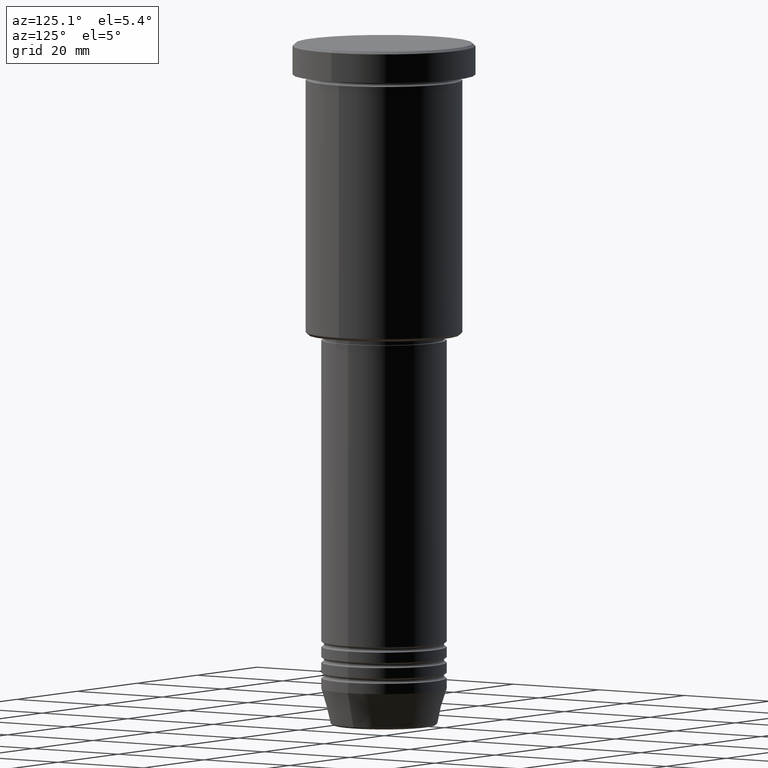
[diagram: clean part render]
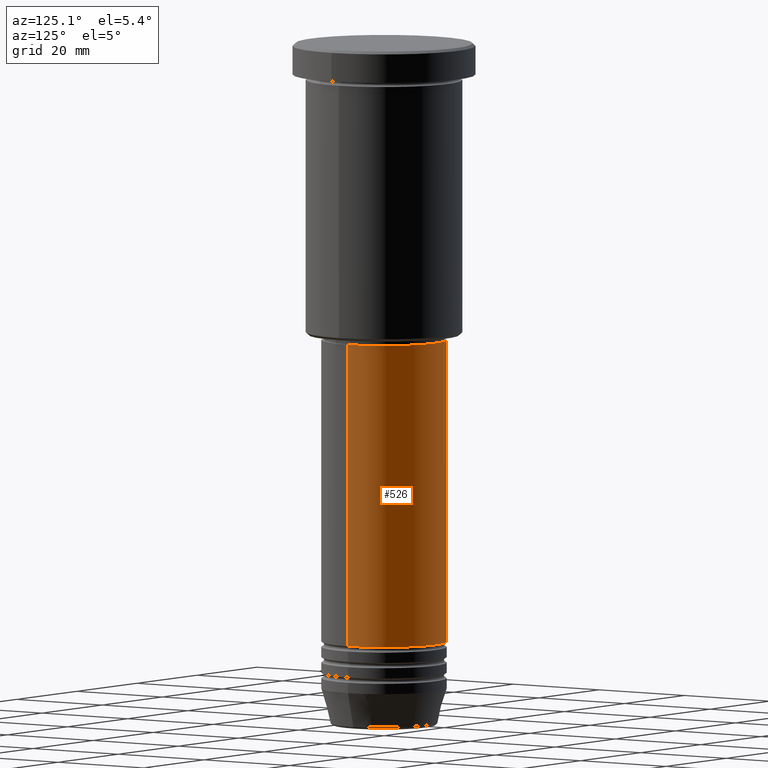
[diagram: same view with one face highlighted and labeled with its STEP entity id]
A machine part, auxiliary view. The second image highlights one B-rep face of the part: STEP entity #526.
In plain terms, the highlighted cylindrical surface (partial cylindrical patch) has radius 12 mm, axis along (-0, -0, 1).
Its self-contained STEP definition (entity closure, byte-faithful):
#58 = DIRECTION ( 'NONE',  ( 1.000000000000000000, 0.000000000000000000, 0.000000000000000000 ) ) ;
#83 = CARTESIAN_POINT ( 'NONE',  ( 12.00000000000000000, 0.000000000000000000, 0.000000000000000000 ) ) ;
#121 = FACE_OUTER_BOUND ( 'NONE', #268, .T. ) ;
#136 = CARTESIAN_POINT ( 'NONE',  ( 12.00000000000000000, 0.000000000000000000, -114.9999999999999574 ) ) ;
#138 = EDGE_CURVE ( 'NONE', #661, #628, #400, .T. ) ;
#186 = VECTOR ( 'NONE', #953, 1000.000000000000000 ) ;
#197 = CARTESIAN_POINT ( 'NONE',  ( 0.000000000000000000, 0.000000000000000000, -114.9999999999999574 ) ) ;
#199 = DIRECTION ( 'NONE',  ( -0.000000000000000000, -0.000000000000000000, 1.000000000000000000 ) ) ;
#248 = VERTEX_POINT ( 'NONE', #578 ) ;
#268 = EDGE_LOOP ( 'NONE', ( #883, #1158, #552, #1036 ) ) ;
#313 = LINE ( 'NONE', #1037, #186 ) ;
#336 = DIRECTION ( 'NONE',  ( -0.000000000000000000, -0.000000000000000000, 1.000000000000000000 ) ) ;
#361 = VERTEX_POINT ( 'NONE', #136 ) ;
#396 = EDGE_CURVE ( 'NONE', #361, #661, #649, .T. ) ;
#400 = CIRCLE ( 'NONE', #1061, 12.00000000000000000 ) ;
#402 = VECTOR ( 'NONE', #1091, 1000.000000000000000 ) ;
#479 = DIRECTION ( 'NONE',  ( -0.000000000000000000, -0.000000000000000000, 1.000000000000000000 ) ) ;
#500 = AXIS2_PLACEMENT_3D ( 'NONE', #197, #479, #1111 ) ;
#526 = ADVANCED_FACE ( 'NONE', ( #121 ), #847, .T. ) ;
#552 = ORIENTED_EDGE ( 'NONE', *, *, #138, .F. ) ;
#569 = DIRECTION ( 'NONE',  ( 1.000000000000000000, 0.000000000000000000, 0.000000000000000000 ) ) ;
#578 = CARTESIAN_POINT ( 'NONE',  ( -12.00000000000000000, 1.469576158976823947E-15, -114.9999999999999574 ) ) ;
#628 = VERTEX_POINT ( 'NONE', #869 ) ;
#649 = LINE ( 'NONE', #83, #402 ) ;
#661 = VERTEX_POINT ( 'NONE', #701 ) ;
#701 = CARTESIAN_POINT ( 'NONE',  ( 12.00000000000000000, 0.000000000000000000, -57.00000000000000000 ) ) ;
#847 = CYLINDRICAL_SURFACE ( 'NONE', #859, 12.00000000000000000 ) ;
#859 = AXIS2_PLACEMENT_3D ( 'NONE', #1106, #199, #569 ) ;
#869 = CARTESIAN_POINT ( 'NONE',  ( -12.00000000000000000, 1.469576158976823947E-15, -57.00000000000000000 ) ) ;
#883 = ORIENTED_EDGE ( 'NONE', *, *, #901, .T. ) ;
#901 = EDGE_CURVE ( 'NONE', #361, #248, #957, .T. ) ;
#945 = EDGE_CURVE ( 'NONE', #248, #628, #313, .T. ) ;
#953 = DIRECTION ( 'NONE',  ( -0.000000000000000000, -0.000000000000000000, 1.000000000000000000 ) ) ;
#957 = CIRCLE ( 'NONE', #500, 12.00000000000000000 ) ;
#988 = CARTESIAN_POINT ( 'NONE',  ( 0.000000000000000000, 0.000000000000000000, -57.00000000000000000 ) ) ;
#1036 = ORIENTED_EDGE ( 'NONE', *, *, #396, .F. ) ;
#1037 = CARTESIAN_POINT ( 'NONE',  ( -12.00000000000000000, 1.469576158976823947E-15, 0.000000000000000000 ) ) ;
#1061 = AXIS2_PLACEMENT_3D ( 'NONE', #988, #336, #58 ) ;
#1091 = DIRECTION ( 'NONE',  ( -0.000000000000000000, -0.000000000000000000, 1.000000000000000000 ) ) ;
#1106 = CARTESIAN_POINT ( 'NONE',  ( 0.000000000000000000, 0.000000000000000000, 0.000000000000000000 ) ) ;
#1111 = DIRECTION ( 'NONE',  ( 1.000000000000000000, 0.000000000000000000, 0.000000000000000000 ) ) ;
#1158 = ORIENTED_EDGE ( 'NONE', *, *, #945, .T. ) ;